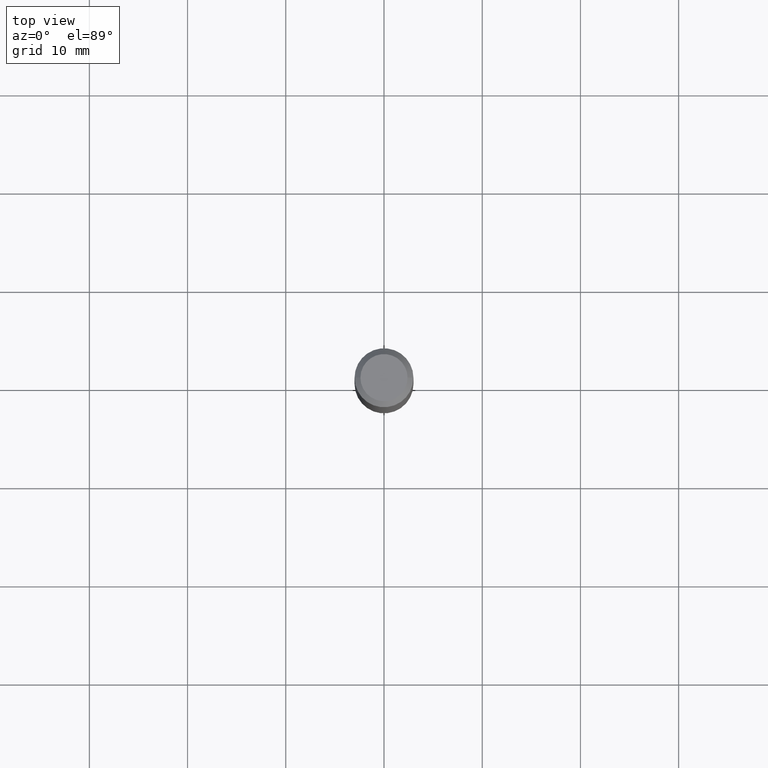
[diagram: clean part render]
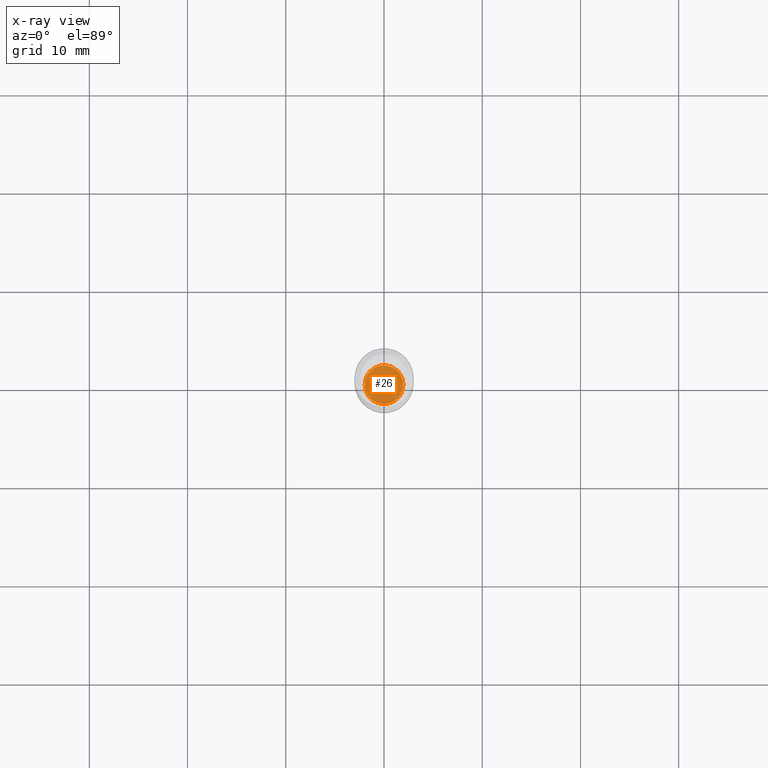
[diagram: x-ray — body ghosted, one internal face saturated and labeled with its STEP entity id]
A machine part, top view, then the same camera in x-ray: the body is ghosted and one INTERNAL B-rep face — a face not visible from any outside direction — is saturated and labeled: STEP entity #26.
In plain terms, the highlighted planar face has unit normal (-0, 0, 1).
Its self-contained STEP definition (entity closure, byte-faithful):
#9 = FACE_OUTER_BOUND ( 'NONE', #258, .T. ) ;
#25 = VERTEX_POINT ( 'NONE', #38 ) ;
#26 = ADVANCED_FACE ( 'NONE', ( #9 ), #265, .F. ) ;
#30 = VERTEX_POINT ( 'NONE', #188 ) ;
#38 = CARTESIAN_POINT ( 'NONE',  ( 0.07760000000000000231, -6.310503371825098014E-15, -1.652199999999999669 ) ) ;
#45 = AXIS2_PLACEMENT_3D ( 'NONE', #462, #375, #70 ) ;
#70 = DIRECTION ( 'NONE',  ( 1.000000000000000000, -6.982962677686265922E-15, 4.876176775795935793E-29 ) ) ;
#102 = EDGE_CURVE ( 'NONE', #25, #30, #245, .T. ) ;
#115 = AXIS2_PLACEMENT_3D ( 'NONE', #231, #382, #385 ) ;
#143 = EDGE_CURVE ( 'NONE', #30, #25, #271, .T. ) ;
#171 = ORIENTED_EDGE ( 'NONE', *, *, #102, .F. ) ;
#184 = CARTESIAN_POINT ( 'NONE',  ( 4.040403561579081805E-29, -5.768625468036644373E-15, -1.652199999999999669 ) ) ;
#188 = CARTESIAN_POINT ( 'NONE',  ( -0.07760000000000000231, -5.214595077912695412E-15, -1.652199999999999669 ) ) ;
#208 = ORIENTED_EDGE ( 'NONE', *, *, #143, .F. ) ;
#231 = CARTESIAN_POINT ( 'NONE',  ( 4.040403561579081805E-29, -5.768625468036644373E-15, -1.652199999999999669 ) ) ;
#245 = CIRCLE ( 'NONE', #300, 0.07760000000000000231 ) ;
#258 = EDGE_LOOP ( 'NONE', ( #171, #208 ) ) ;
#265 = PLANE ( 'NONE',  #45 ) ;
#271 = CIRCLE ( 'NONE', #115, 0.07760000000000000231 ) ;
#300 = AXIS2_PLACEMENT_3D ( 'NONE', #184, #425, #340 ) ;
#340 = DIRECTION ( 'NONE',  ( 1.000000000000000000, -6.982962677686260400E-15, 0.000000000000000000 ) ) ;
#375 = DIRECTION ( 'NONE',  ( -2.438088387897960049E-29, 3.491481338843145188E-15, 1.000000000000000000 ) ) ;
#382 = DIRECTION ( 'NONE',  ( -2.445468806185136597E-29, 3.491481338843145583E-15, 1.000000000000000000 ) ) ;
#385 = DIRECTION ( 'NONE',  ( 1.000000000000000000, -6.982962677686260400E-15, 0.000000000000000000 ) ) ;
#425 = DIRECTION ( 'NONE',  ( -2.445468806185136597E-29, 3.491481338843145583E-15, 1.000000000000000000 ) ) ;
#462 = CARTESIAN_POINT ( 'NONE',  ( 4.040403561579081805E-29, -5.768625468036644373E-15, -1.652199999999999669 ) ) ;